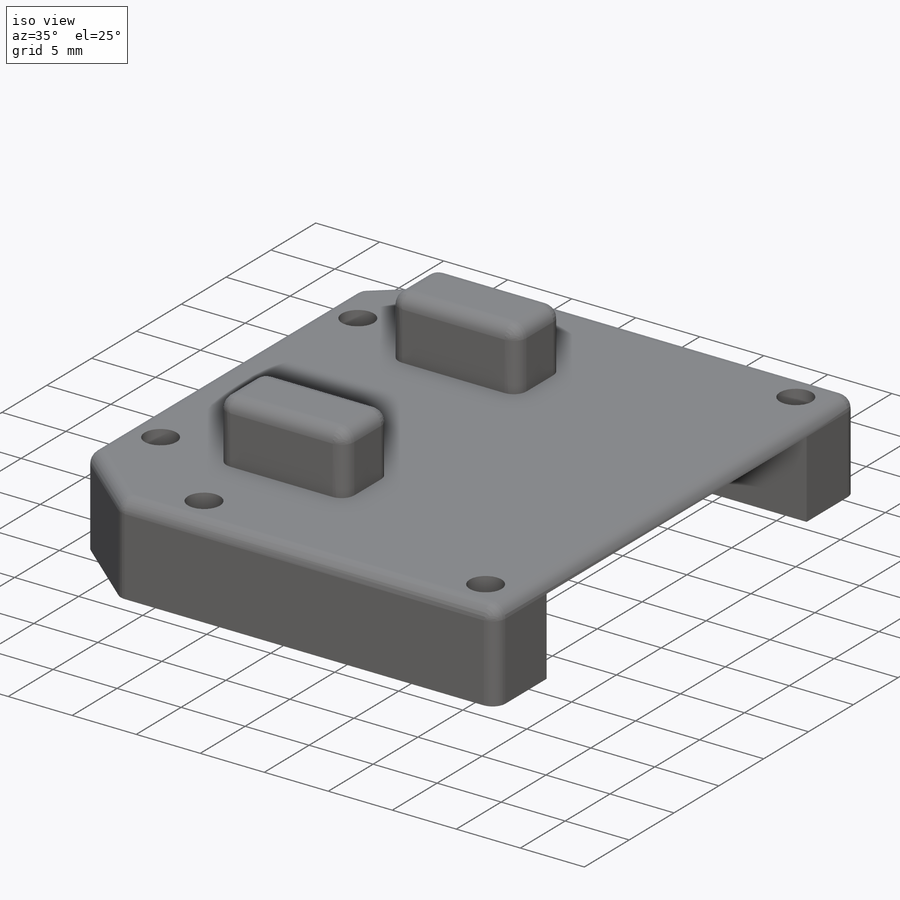
[diagram: iso view]
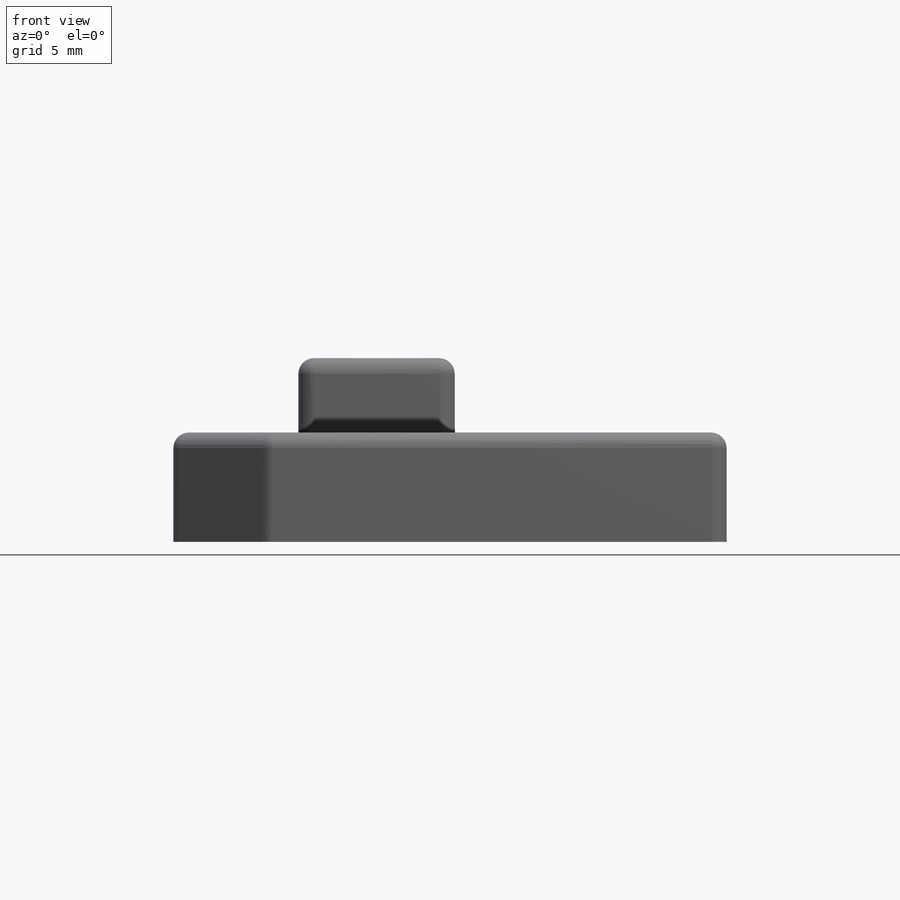
[diagram: front view]
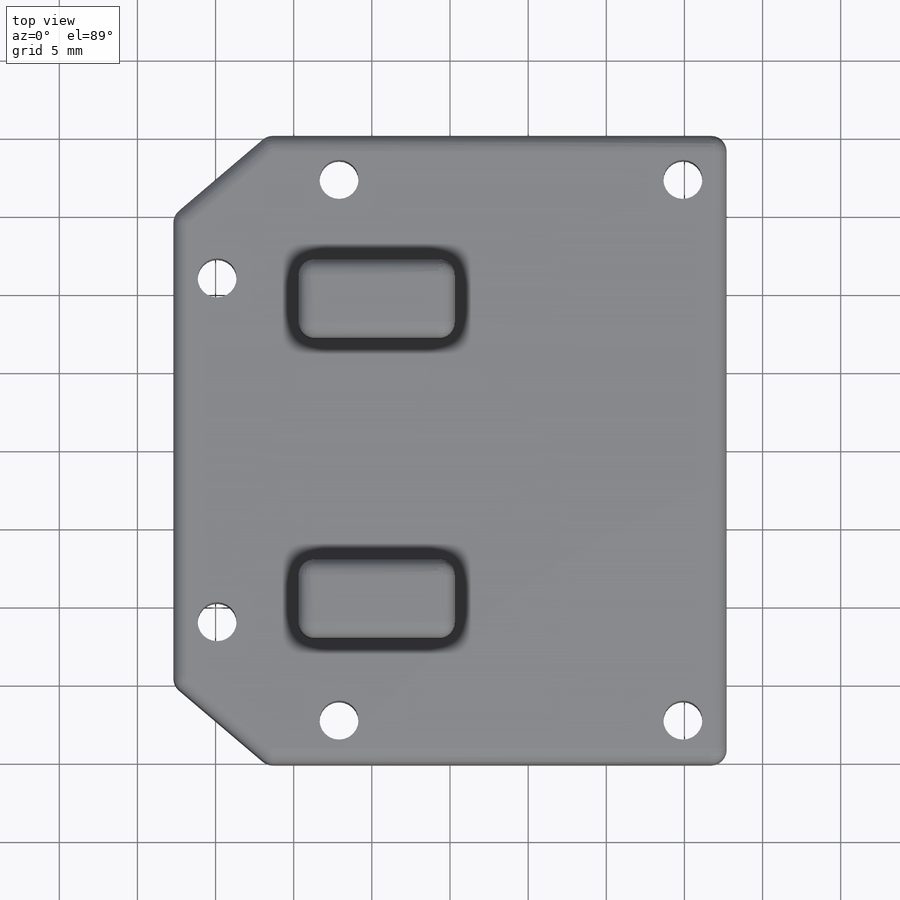
[diagram: top view]
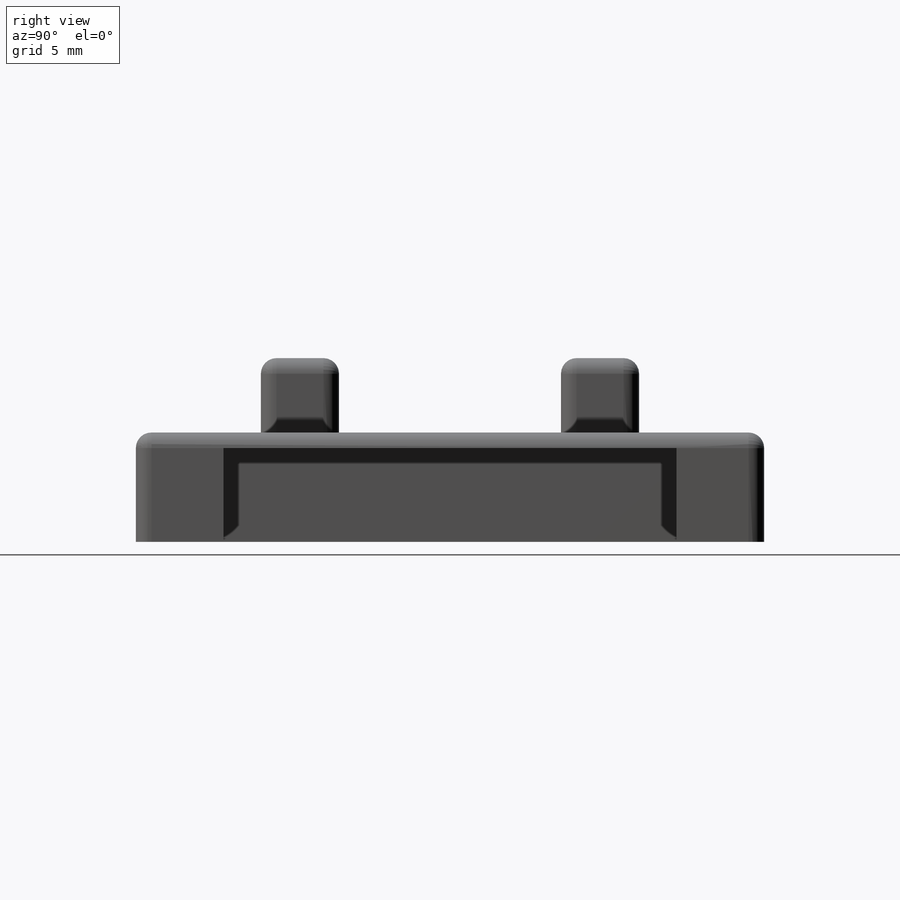
[diagram: right view]
SOLIDWORKS PART (.sldprt)
format: sldprt  version: not decoded by parser v0  size: 333,312 bytes
history: native  units: mm
features: sketch x4, extrude x2, cut_extrude x2, mirror x2, material x1, chamfer x1, fillet x1 (+11 scaffold rows collapsed)
feature tree (24):
  scaffold x11  (default folders/planes/origin — collapsed)
  material  "Material <not specified>"
  sketch  "Sketch1"  dims[D1=40.2mm D2=35.4mm]
  extrude  "Boss-Extrude1"  Depth=7mm
  sketch  "Sketch2"  dims[D1=29.0mm D2=6.0mm]
  cut_extrude  "Cut-Extrude1"  Depth=5.6mm
  sketch  "Sketch3"  dims[D3=2.5mm D1=2.8mm D2=2.8mm D4=22.0mm D5=2.8mm D6=9.1mm]
  cut_extrude  "Cut-Extrude2"  [1 undecoded]
  sketch  "Sketch4"  dims[D1=5.0mm D2=10.0mm D3=8.0mm D4=8.0mm]
  extrude  "Boss-Extrude2"  Depth=4.7625mm
  mirror  "Mirror1"
  chamfer  "Chamfer1"  Distance=5.1mm
  mirror  "Mirror4"
  fillet  "Fillet1"  Radius=1mm
decode coverage: 9 of 12 modeling features carry decoded parameters
note: 1 parameter value undecoded
note: suppression state not decoded; provenance and decode notes live in map.json
